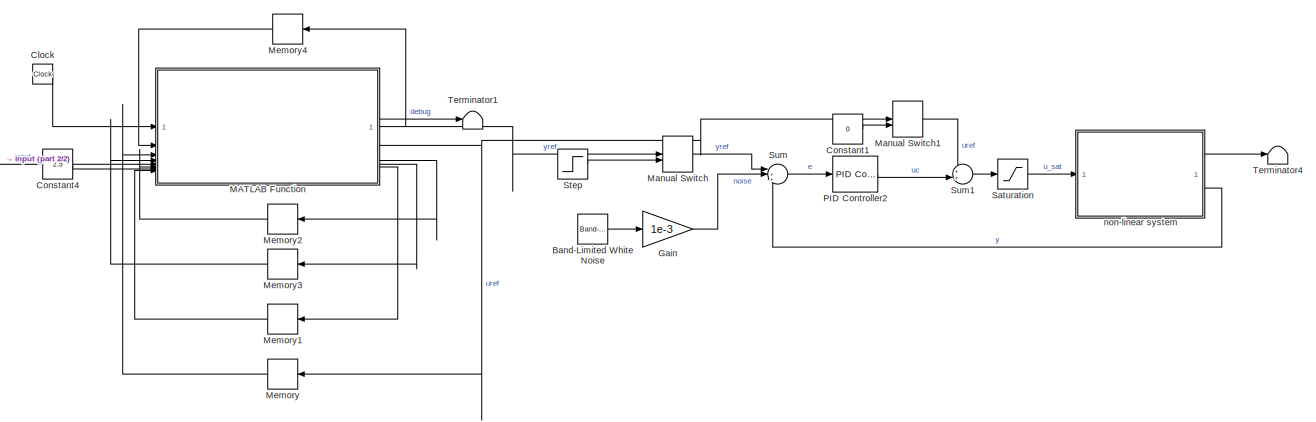
[diagram: root canvas - part 1/2, most of the canvas]
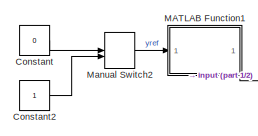
[diagram: root canvas - part 2/2, middle left region]
MODEL slx_3503698be0c4
KIND model
CONFIG AbsTol = auto
CONFIG EnableMultiTasking = off
CONFIG FixedStep = auto
CONFIG MaxStep = 1e-3
CONFIG MinStep = auto
CONFIG RelTol = 1e-3
CONFIG SampleTimeConstraint = Unconstrained
CONFIG SolverName = VariableStepAuto
CONFIG StartTime = 0.0
CONFIG StopTime = inf
BLOCK [Reference] Band-Limited White Noise  REF=simulink/Sources/Band-Limited
White Noise
  SourceBlock = simulink/Sources/Band-Limited\nWhite Noise
  SourceType = Band-Limited White Noise.
BLOCK [Clock] Clock
BLOCK [Constant] Constant
  Value = 0
BLOCK [Constant] Constant1
  Value = 0
BLOCK [Constant] Constant2
BLOCK [Constant] Constant4
  Value = 2.5
BLOCK [Gain] Gain
  Gain = 1e-3
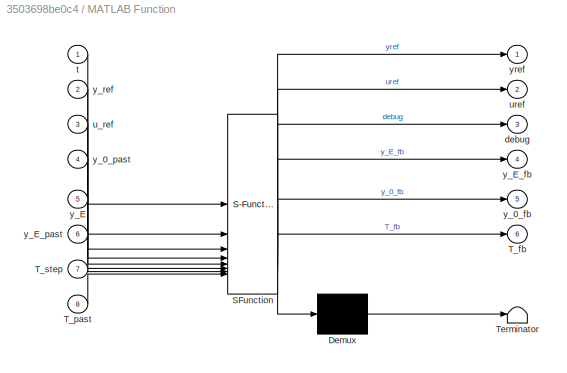
BLOCK [SubSystem] MATLAB Function
  ErrorFcn = Stateflow.Translate.translate
  PermitHierarchicalResolution = ExplicitOnly
  SFBlockType = MATLAB Function
  TreatAsAtomicUnit = on
BLOCK [Demux] MATLAB Function/ Demux 
  Outputs = 1
BLOCK [S-Function] MATLAB Function/ SFunction 
  EnableBusSupport = on
  FunctionName = sf_sfun
  Parameters = a1,a2,a3,k_w,tau_w
  PortCounts = [8 7]
  SFcnIsStateOwnerBlock = off
  SFunctionDeploymentMode = off
  Tag = Stateflow S-Function 2
BLOCK [Terminator] MATLAB Function/ Terminator 
BLOCK [Outport] MATLAB Function/T_fb
  Port = 6
BLOCK [Inport] MATLAB Function/T_past
  Port = 8
BLOCK [Inport] MATLAB Function/T_step
  Port = 7
BLOCK [Outport] MATLAB Function/debug
  Port = 3
BLOCK [Inport] MATLAB Function/t
BLOCK [Inport] MATLAB Function/u_ref
  Port = 3
BLOCK [Outport] MATLAB Function/uref
  Port = 2
BLOCK [Outport] MATLAB Function/y_0_fb
  Port = 5
BLOCK [Inport] MATLAB Function/y_0_past
  Port = 4
BLOCK [Inport] MATLAB Function/y_E
  Port = 5
BLOCK [Outport] MATLAB Function/y_E_fb
  Port = 4
BLOCK [Inport] MATLAB Function/y_E_past
  Port = 6
BLOCK [Inport] MATLAB Function/y_ref
  Port = 2
BLOCK [Outport] MATLAB Function/yref
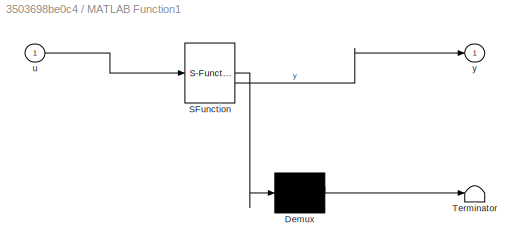
BLOCK [SubSystem] MATLAB Function1
  ErrorFcn = Stateflow.Translate.translate
  PermitHierarchicalResolution = ExplicitOnly
  SFBlockType = MATLAB Function
  TreatAsAtomicUnit = on
BLOCK [Demux] MATLAB Function1/ Demux 
  Outputs = 1
BLOCK [S-Function] MATLAB Function1/ SFunction 
  EnableBusSupport = on
  FunctionName = sf_sfun
  PortCounts = [1 2]
  SFcnIsStateOwnerBlock = off
  SFunctionDeploymentMode = off
  Tag = Stateflow S-Function 3
BLOCK [Terminator] MATLAB Function1/ Terminator 
BLOCK [Inport] MATLAB Function1/u
BLOCK [Outport] MATLAB Function1/y
BLOCK [ManualSwitch] Manual Switch
BLOCK [ManualSwitch] Manual Switch1
BLOCK [ManualSwitch] Manual Switch2
  CurrentSetting = 0
BLOCK [Memory] Memory
  NameLocation = top
BLOCK [Memory] Memory1
  NameLocation = top
BLOCK [Memory] Memory2
  NameLocation = top
BLOCK [Memory] Memory3
  InitialCondition = initial(1)
  NameLocation = top
BLOCK [Memory] Memory4
  InitialCondition = initial(1)
  NameLocation = top
BLOCK [Reference] PID Controller2  REF=slpidlib/PID Controller
  LibrarySourceBlock = simulink/Continuous/PID Controller
  SourceBlock = slpidlib/PID Controller
  SourceType = PID 1dof
BLOCK [Saturate] Saturation
  LowerLimit = 0
  UpperLimit = 5
BLOCK [Step] Step
  SampleTime = 0
BLOCK [Sum] Sum
  Inputs = |++-
BLOCK [Sum] Sum1
  Inputs = ++|
BLOCK [Terminator] Terminator1
BLOCK [Terminator] Terminator4
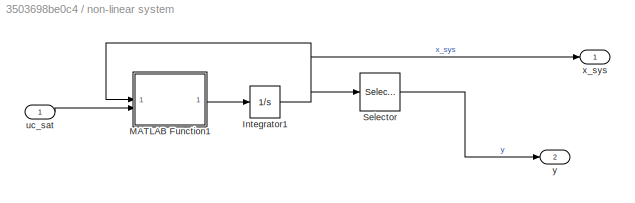
BLOCK [SubSystem] non-linear system
BLOCK [Integrator] non-linear system/Integrator1
  InitialCondition = initial
  LimitOutput = on
  LowerSaturationLimit = lower_sat
  UpperSaturationLimit = upper_sat
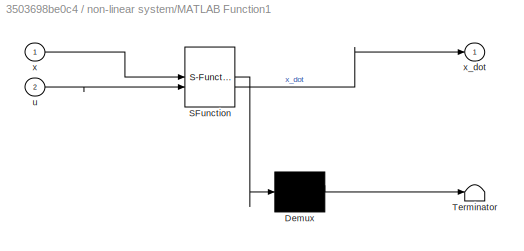
BLOCK [SubSystem] non-linear system/MATLAB Function1
  ErrorFcn = Stateflow.Translate.translate
  PermitHierarchicalResolution = ExplicitOnly
  SFBlockType = MATLAB Function
  TreatAsAtomicUnit = on
BLOCK [Demux] non-linear system/MATLAB Function1/ Demux 
  Outputs = 1
BLOCK [S-Function] non-linear system/MATLAB Function1/ SFunction 
  EnableBusSupport = on
  FunctionName = sf_sfun
  Parameters = a1,a2,a3,k_w,tau_w
  PortCounts = [2 2]
  SFcnIsStateOwnerBlock = off
  SFunctionDeploymentMode = off
  Tag = Stateflow S-Function 1
BLOCK [Terminator] non-linear system/MATLAB Function1/ Terminator 
BLOCK [Inport] non-linear system/MATLAB Function1/u
  Port = 2
BLOCK [Inport] non-linear system/MATLAB Function1/x
BLOCK [Outport] non-linear system/MATLAB Function1/x_dot
BLOCK [Selector] non-linear system/Selector
  IndexOptions = Index vector (dialog)
  Indices = 1
  InputPortWidth = 3
  OutputSizes = 1
BLOCK [Inport] non-linear system/uc_sat
BLOCK [Outport] non-linear system/x_sys
BLOCK [Outport] non-linear system/y
  Port = 2
LINE Band-Limited White Noise:1 -> Gain:1
LINE Clock:1 -> MATLAB Function:1
LINE Constant1:1 -> Manual Switch1:2
LINE Constant2:1 -> Manual Switch2:2
LINE Constant4:1 -> MATLAB Function:7
LINE Constant:1 -> Manual Switch2:1
LINE Gain:1 -> Sum:2
LINE MATLAB Function1:1 -> MATLAB Function:5
NET MATLAB Function:1 -> Manual Switch:1, Memory4:1
NET MATLAB Function:2 -> Manual Switch1:1, Memory:1
LINE MATLAB Function:3 -> Terminator1:1
LINE MATLAB Function:4 -> Memory2:1
LINE MATLAB Function:5 -> Memory3:1
LINE MATLAB Function:6 -> Memory1:1
LINE Manual Switch1:1 -> Sum1:1
LINE Manual Switch2:1 -> MATLAB Function1:1
LINE Manual Switch:1 -> Sum:1
LINE Memory1:1 -> MATLAB Function:8
LINE Memory2:1 -> MATLAB Function:6
LINE Memory3:1 -> MATLAB Function:4
LINE Memory4:1 -> MATLAB Function:2
LINE Memory:1 -> MATLAB Function:3
LINE PID Controller2:1 -> Sum1:2
LINE Saturation:1 -> non-linear system:1
LINE Step:1 -> Manual Switch:2
LINE Sum1:1 -> Saturation:1
LINE Sum:1 -> PID Controller2:1
NET non-linear system/Integrator1:1 -> non-linear system/MATLAB Function1:1, non-linear system/Selector:1, non-linear system/x_sys:1
LINE non-linear system/MATLAB Function1:1 -> non-linear system/Integrator1:1
LINE non-linear system/Selector:1 -> non-linear system/y:1
LINE non-linear system/uc_sat:1 -> non-linear system/MATLAB Function1:2
LINE non-linear system:1 -> Terminator4:1
LINE non-linear system:2 -> Sum:3
note: NET lines group one-source signal fan-out (src -> all destinations, sorted); 1:1 wires keep LINE
CHART non-linear system/MATLAB Function1 states=1 transitions=1
  STATE_LABEL 'eML_blk_kernel()'
  STATE_LABEL 'SCRIPT:\nfunction x_dot  = fcn(x,u,a1, a2, a3, tau_w, k_w)\n\n\n\n%nonlinear set of equation\nx_dot = [x(2); (a1*x(3)-a2*x(2))^2-a3; -x(3)/tau_w]+[0; 0; k_w/tau_w]*u;\n\n'
CHART MATLAB Function states=1 transitions=1
  STATE_LABEL 'eML_blk_kernel()'
  STATE_LABEL 'SCRIPT:\nfunction [yref, uref, debug, y_E_fb, y_0_fb, T_fb] = trajectory_planning(t, y_ref, u_ref, y_0_past, y_E, y_E_past, T_step, T_past, tau_w, a3, a2, a1, k_w)\n    % t: Current simulation time\n    % y_0: Initial height of the ball\n    % y_T: Desired height of the ball\n    % T: Duration of the trajectory\n    % tau_w: Fan time constant\n    % a3, a2, a1: System coefficients\n    % k_w: Fan gain\n\n  ...<+1628ch>'
CHART MATLAB Function1 states=1 transitions=1
  STATE_LABEL 'eML_blk_kernel()'
  STATE_LABEL 'SCRIPT:\nfunction y = fcn(u)\n\nif(u)\n    y = 0.15;\nelse\n    y = 0.2;\nend\n'
CHART  states=0 transitions=0
CHART  states=0 transitions=0
CHART  states=0 transitions=0
